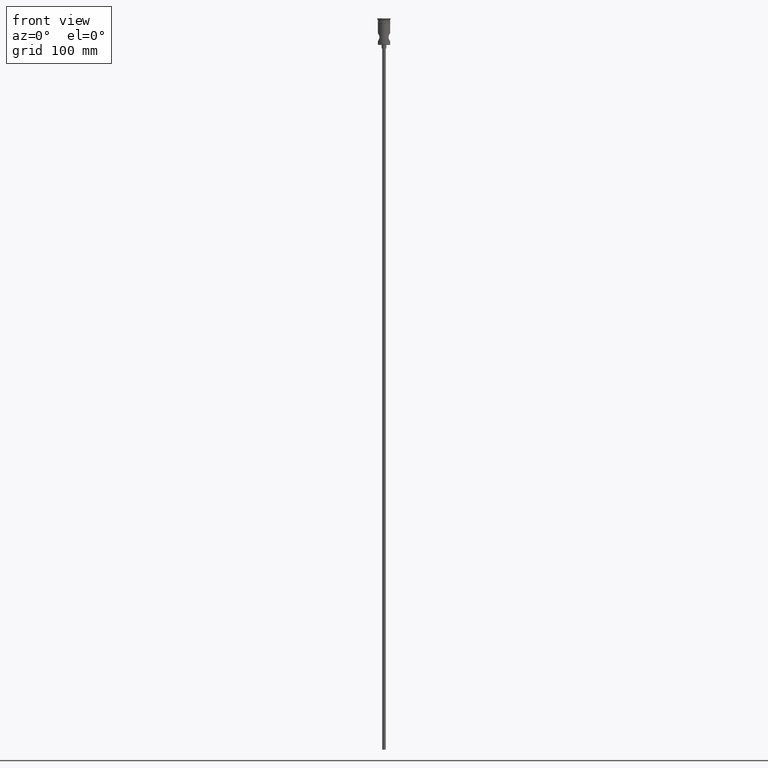
[diagram: clean part render]
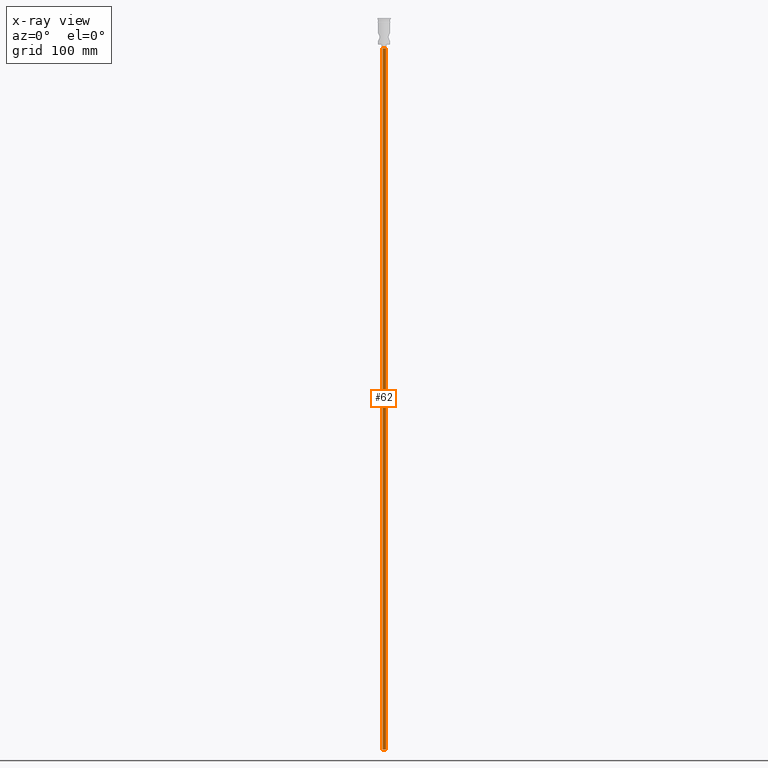
[diagram: x-ray — body ghosted, one internal face saturated and labeled with its STEP entity id]
A machine part, front view, then the same camera in x-ray: the body is ghosted and one INTERNAL B-rep face — a face not visible from any outside direction — is saturated and labeled: STEP entity #62.
In plain terms, the highlighted cylindrical surface (edge-blend (fillet) strip) has radius 1.5 mm, axis along (-0, -0, 1).
Its self-contained STEP definition (entity closure, byte-faithful):
#46 = CARTESIAN_POINT ( 'NONE',  ( 1.500000000000000222, 0.000000000000000000, -622.4999999999998863 ) ) ;
#62 = ADVANCED_FACE ( 'NONE', ( #868 ), #500, .T. ) ;
#64 = DIRECTION ( 'NONE',  ( -0.000000000000000000, -0.000000000000000000, 1.000000000000000000 ) ) ;
#75 = ORIENTED_EDGE ( 'NONE', *, *, #495, .F. ) ;
#101 = CIRCLE ( 'NONE', #934, 1.500000000000000222 ) ;
#131 = CARTESIAN_POINT ( 'NONE',  ( 0.000000000000000000, 0.000000000000000000, -25.50000000000000000 ) ) ;
#248 = CARTESIAN_POINT ( 'NONE',  ( 1.500000000000000222, 0.000000000000000000, -622.4999999999998863 ) ) ;
#324 = CARTESIAN_POINT ( 'NONE',  ( -1.500000000000000222, 1.836970198721030181E-16, -25.50000000000000000 ) ) ;
#330 = EDGE_CURVE ( 'NONE', #1180, #577, #487, .T. ) ;
#376 = ORIENTED_EDGE ( 'NONE', *, *, #330, .F. ) ;
#411 = CARTESIAN_POINT ( 'NONE',  ( 0.000000000000000000, 0.000000000000000000, -622.4999999999998863 ) ) ;
#487 = LINE ( 'NONE', #248, #502 ) ;
#495 = EDGE_CURVE ( 'NONE', #854, #1180, #549, .T. ) ;
#500 = CYLINDRICAL_SURFACE ( 'NONE', #1023, 1.500000000000000222 ) ;
#502 = VECTOR ( 'NONE', #64, 1000.000000000000000 ) ;
#503 = VECTOR ( 'NONE', #1100, 1000.000000000000000 ) ;
#508 = DIRECTION ( 'NONE',  ( -1.000000000000000000, 0.000000000000000000, 0.000000000000000000 ) ) ;
#520 = ORIENTED_EDGE ( 'NONE', *, *, #1172, .T. ) ;
#549 = CIRCLE ( 'NONE', #857, 1.500000000000000222 ) ;
#577 = VERTEX_POINT ( 'NONE', #1438 ) ;
#636 = DIRECTION ( 'NONE',  ( 1.000000000000000000, 0.000000000000000000, 0.000000000000000000 ) ) ;
#854 = VERTEX_POINT ( 'NONE', #1264 ) ;
#857 = AXIS2_PLACEMENT_3D ( 'NONE', #411, #1419, #508 ) ;
#868 = FACE_OUTER_BOUND ( 'NONE', #1274, .T. ) ;
#874 = CARTESIAN_POINT ( 'NONE',  ( 0.000000000000000000, 0.000000000000000000, -622.4999999999998863 ) ) ;
#934 = AXIS2_PLACEMENT_3D ( 'NONE', #131, #1044, #1359 ) ;
#970 = DIRECTION ( 'NONE',  ( -0.000000000000000000, -0.000000000000000000, 1.000000000000000000 ) ) ;
#1023 = AXIS2_PLACEMENT_3D ( 'NONE', #874, #970, #636 ) ;
#1044 = DIRECTION ( 'NONE',  ( 0.000000000000000000, 0.000000000000000000, -1.000000000000000000 ) ) ;
#1065 = ORIENTED_EDGE ( 'NONE', *, *, #1088, .T. ) ;
#1083 = VERTEX_POINT ( 'NONE', #324 ) ;
#1088 = EDGE_CURVE ( 'NONE', #854, #1083, #1094, .T. ) ;
#1094 = LINE ( 'NONE', #1212, #503 ) ;
#1100 = DIRECTION ( 'NONE',  ( -0.000000000000000000, -0.000000000000000000, 1.000000000000000000 ) ) ;
#1172 = EDGE_CURVE ( 'NONE', #1083, #577, #101, .T. ) ;
#1180 = VERTEX_POINT ( 'NONE', #46 ) ;
#1212 = CARTESIAN_POINT ( 'NONE',  ( -1.500000000000000222, 1.836970198721030181E-16, -622.4999999999998863 ) ) ;
#1264 = CARTESIAN_POINT ( 'NONE',  ( -1.500000000000000222, 1.836970198721030181E-16, -622.4999999999998863 ) ) ;
#1274 = EDGE_LOOP ( 'NONE', ( #75, #1065, #520, #376 ) ) ;
#1359 = DIRECTION ( 'NONE',  ( -1.000000000000000000, 0.000000000000000000, 0.000000000000000000 ) ) ;
#1419 = DIRECTION ( 'NONE',  ( 0.000000000000000000, 0.000000000000000000, -1.000000000000000000 ) ) ;
#1438 = CARTESIAN_POINT ( 'NONE',  ( 1.500000000000000222, 0.000000000000000000, -25.50000000000000000 ) ) ;